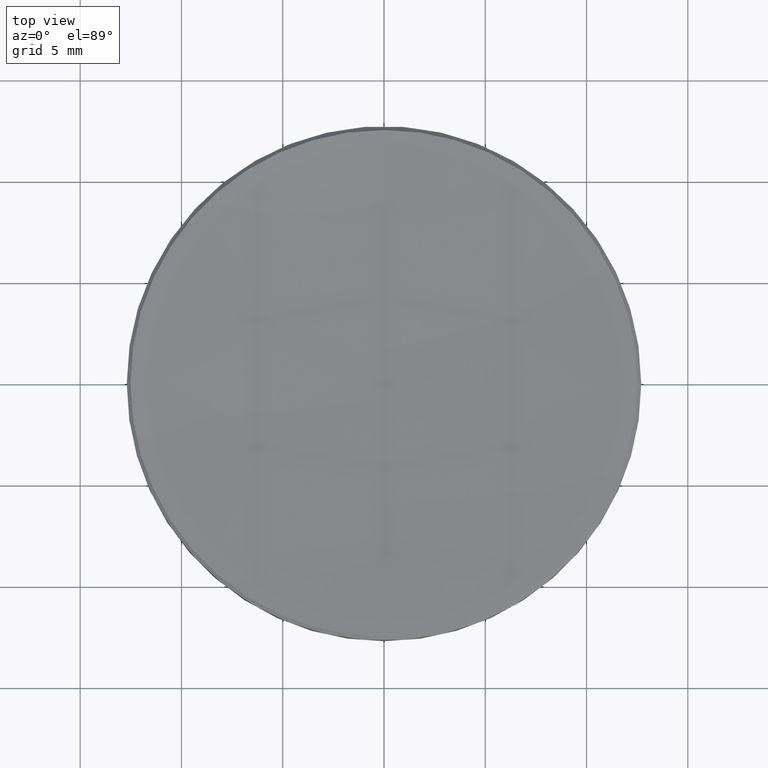
[diagram: clean part render]
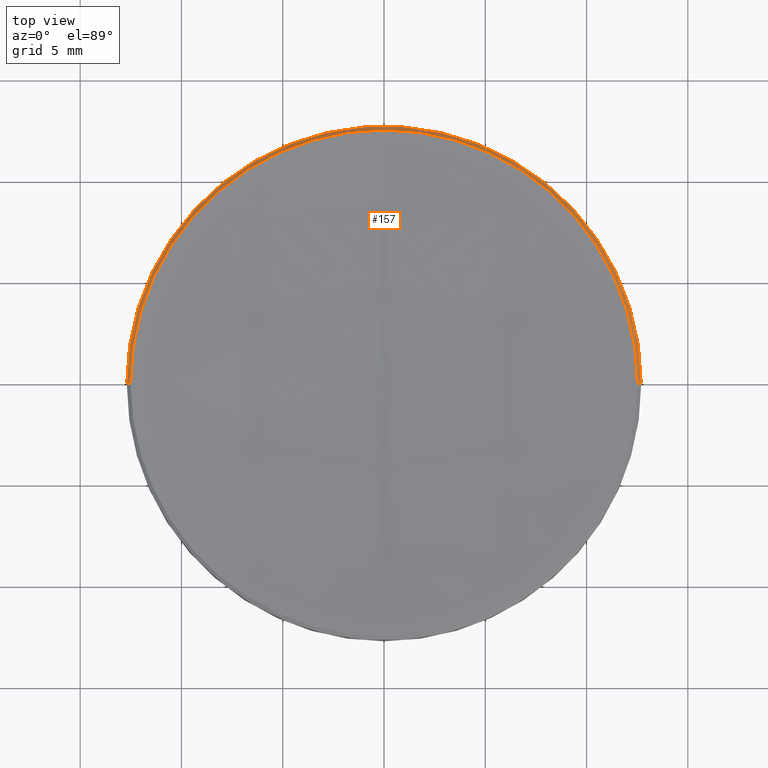
[diagram: same view with one face highlighted and labeled with its STEP entity id]
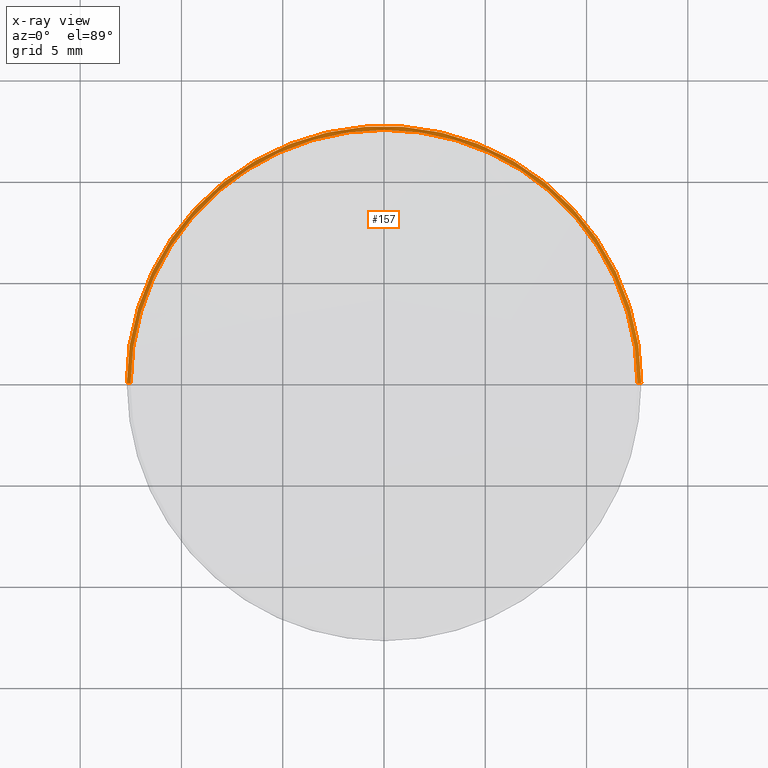
[diagram: x-ray of the same camera — body ghosted, the highlighted face saturated]
A machine part, top view. The second image highlights one B-rep face of the part: STEP entity #157.
The next image is the same camera in x-ray: the body ghosted, the highlighted face saturated — about 0% of this face is hidden behind the body in this view.
In plain terms, the highlighted conical surface has half-angle 45 deg.
Its self-contained STEP definition (entity closure, byte-faithful):
#5 = DIRECTION ( 'NONE',  ( 0.7071067811865642261, 8.659560562355136236E-17, -0.7071067811865309194 ) ) ;
#18 = CARTESIAN_POINT ( 'NONE',  ( 0.000000000000000000, 12.51558093570944230, 5.984419064290369406 ) ) ;
#25 = DIRECTION ( 'NONE',  ( 0.000000000000000000, 0.000000000000000000, -1.000000000000000000 ) ) ;
#31 = CIRCLE ( 'NONE', #200, 12.51558093570960040 ) ;
#36 = VERTEX_POINT ( 'NONE', #64 ) ;
#38 = CIRCLE ( 'NONE', #205, 12.69999999999999929 ) ;
#44 = DIRECTION ( 'NONE',  ( 1.000000000000000000, 0.000000000000000000, 0.000000000000000000 ) ) ;
#45 = VECTOR ( 'NONE', #5, 1000.000000000000114 ) ;
#50 = DIRECTION ( 'NONE',  ( -0.000000000000000000, -0.000000000000000000, 1.000000000000000000 ) ) ;
#56 = EDGE_CURVE ( 'NONE', #229, #274, #38, .T. ) ;
#64 = CARTESIAN_POINT ( 'NONE',  ( 12.51558093570960040, 1.544009024077889242E-15, 5.984419064290369406 ) ) ;
#66 = ORIENTED_EDGE ( 'NONE', *, *, #104, .F. ) ;
#70 = DIRECTION ( 'NONE',  ( -1.000000000000000000, 0.000000000000000000, 0.000000000000000000 ) ) ;
#74 = VECTOR ( 'NONE', #218, 1000.000000000000114 ) ;
#79 = DIRECTION ( 'NONE',  ( 0.000000000000000000, 0.000000000000000000, -1.000000000000000000 ) ) ;
#80 = ORIENTED_EDGE ( 'NONE', *, *, #184, .F. ) ;
#92 = LINE ( 'NONE', #97, #45 ) ;
#95 = DIRECTION ( 'NONE',  ( 1.000000000000000000, 0.000000000000000000, 0.000000000000000000 ) ) ;
#97 = CARTESIAN_POINT ( 'NONE',  ( 12.51558093570959329, 1.532716613238638868E-15, 5.984419064290396939 ) ) ;
#103 = AXIS2_PLACEMENT_3D ( 'NONE', #167, #190, #44 ) ;
#104 = EDGE_CURVE ( 'NONE', #228, #113, #31, .T. ) ;
#107 = EDGE_CURVE ( 'NONE', #36, #274, #92, .T. ) ;
#109 = AXIS2_PLACEMENT_3D ( 'NONE', #271, #25, #70 ) ;
#113 = VERTEX_POINT ( 'NONE', #197 ) ;
#130 = ORIENTED_EDGE ( 'NONE', *, *, #56, .F. ) ;
#146 = CONICAL_SURFACE ( 'NONE', #109, 12.51558093570959329, 0.7853981633974718157 ) ;
#154 = ORIENTED_EDGE ( 'NONE', *, *, #107, .T. ) ;
#157 = ADVANCED_FACE ( 'NONE', ( #174 ), #146, .T. ) ;
#159 = CARTESIAN_POINT ( 'NONE',  ( -12.51558093570959329, 0.000000000000000000, 5.984419064290396939 ) ) ;
#162 = CIRCLE ( 'NONE', #103, 12.51558093570960040 ) ;
#166 = DIRECTION ( 'NONE',  ( 1.000000000000000000, 0.000000000000000000, 0.000000000000000000 ) ) ;
#167 = CARTESIAN_POINT ( 'NONE',  ( 0.000000000000000000, 0.000000000000000000, 5.984419064290369406 ) ) ;
#173 = CARTESIAN_POINT ( 'NONE',  ( -12.69999999999999929, 0.000000000000000000, 5.799999999999999822 ) ) ;
#174 = FACE_OUTER_BOUND ( 'NONE', #216, .T. ) ;
#184 = EDGE_CURVE ( 'NONE', #113, #229, #247, .T. ) ;
#190 = DIRECTION ( 'NONE',  ( -0.000000000000000000, -0.000000000000000000, 1.000000000000000000 ) ) ;
#197 = CARTESIAN_POINT ( 'NONE',  ( -12.51558093570960040, 0.000000000000000000, 5.984419064290369406 ) ) ;
#200 = AXIS2_PLACEMENT_3D ( 'NONE', #280, #50, #95 ) ;
#205 = AXIS2_PLACEMENT_3D ( 'NONE', #277, #79, #166 ) ;
#216 = EDGE_LOOP ( 'NONE', ( #240, #154, #130, #80, #66 ) ) ;
#218 = DIRECTION ( 'NONE',  ( -0.7071067811865642261, 0.000000000000000000, -0.7071067811865309194 ) ) ;
#228 = VERTEX_POINT ( 'NONE', #18 ) ;
#229 = VERTEX_POINT ( 'NONE', #173 ) ;
#240 = ORIENTED_EDGE ( 'NONE', *, *, #256, .F. ) ;
#247 = LINE ( 'NONE', #159, #74 ) ;
#256 = EDGE_CURVE ( 'NONE', #36, #228, #162, .T. ) ;
#260 = CARTESIAN_POINT ( 'NONE',  ( 12.69999999999999929, 1.555301434917138433E-15, 5.799999999999999822 ) ) ;
#271 = CARTESIAN_POINT ( 'NONE',  ( 0.000000000000000000, 0.000000000000000000, 5.984419064290396939 ) ) ;
#274 = VERTEX_POINT ( 'NONE', #260 ) ;
#277 = CARTESIAN_POINT ( 'NONE',  ( 0.000000000000000000, 0.000000000000000000, 5.799999999999999822 ) ) ;
#280 = CARTESIAN_POINT ( 'NONE',  ( 0.000000000000000000, 0.000000000000000000, 5.984419064290369406 ) ) ;